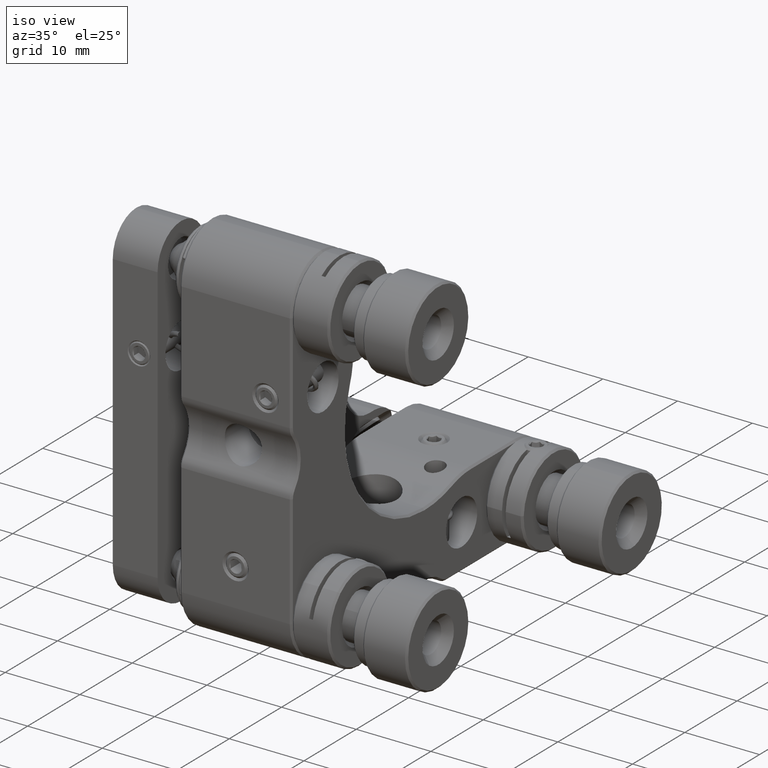
[diagram: clean part render]
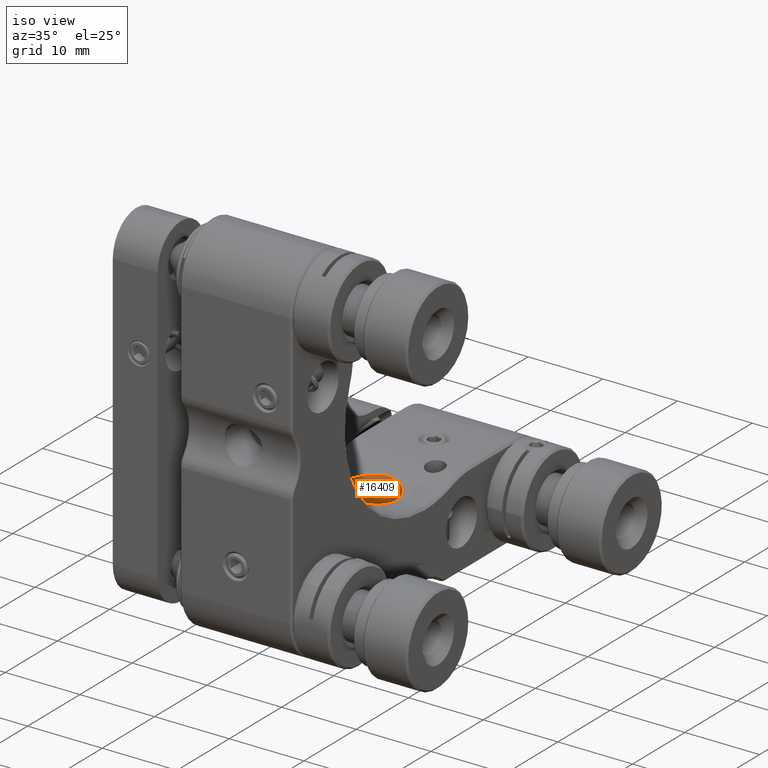
[diagram: same view with one face highlighted and labeled with its STEP entity id]
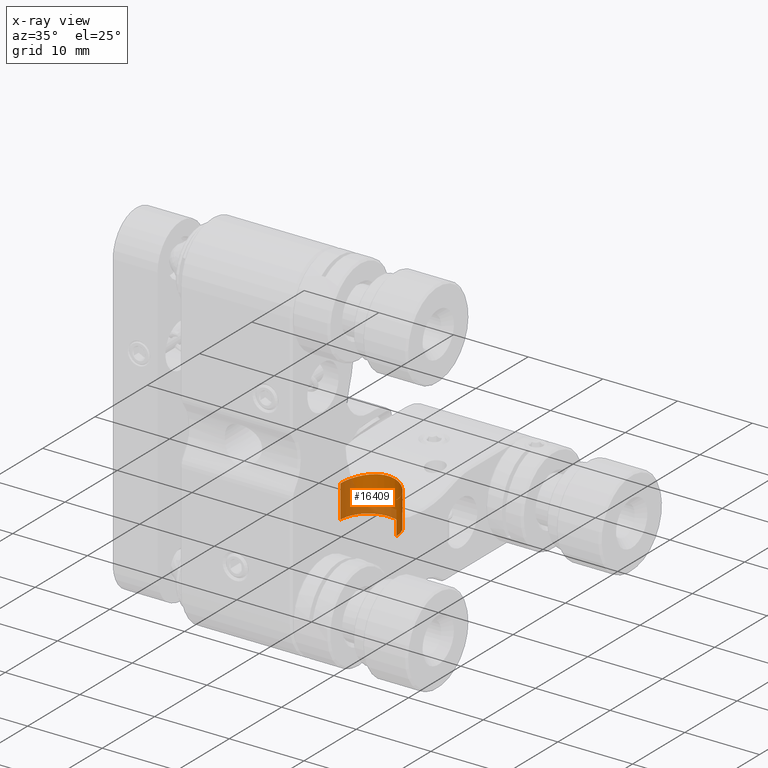
[diagram: x-ray of the same camera — body ghosted, the highlighted face saturated]
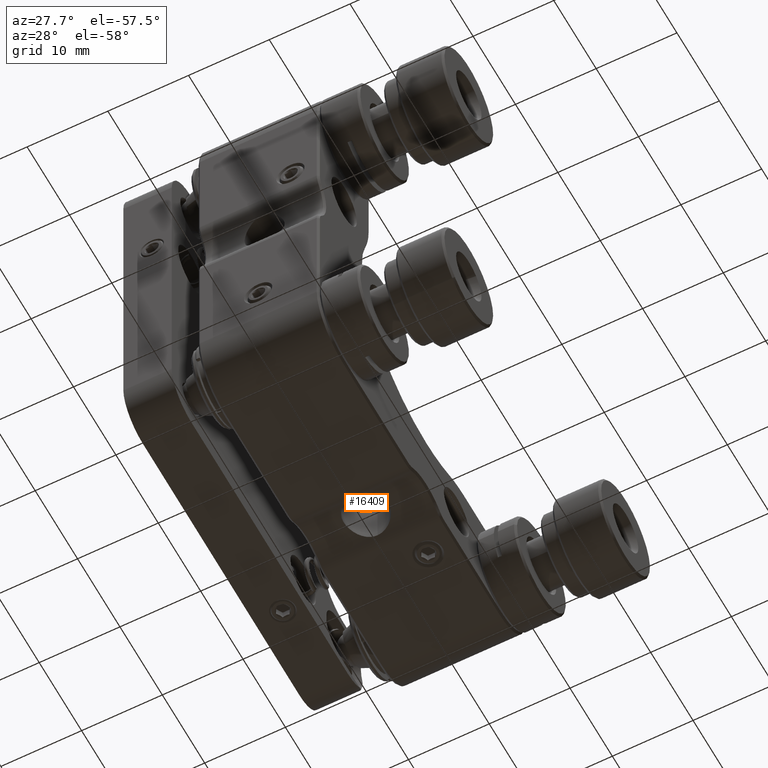
[diagram: same view with one face highlighted and labeled with its STEP entity id]
A machine part, iso view. The second image highlights one B-rep face of the part: STEP entity #16409.
The next image is the same camera in x-ray: the body ghosted, the highlighted face saturated — about 41% of this face is hidden behind the body in this view.
A second angle (auxiliary view) of the same face is appended — the face is thin or edge-on in the first view.
In plain terms, the highlighted cylindrical surface (edge-blend (fillet) strip) has radius 3.75 mm, axis along (-0, -0, 1).
Its self-contained STEP definition (entity closure, byte-faithful):
#1509 = CARTESIAN_POINT ( 'NONE',  ( -3.628982585196955490, 1.877101486472922520, -14.07013009986534691 ) ) ;
#1593 = CARTESIAN_POINT ( 'NONE',  ( 3.749999999999995115, 1.148767454818471201, -14.09999999999998366 ) ) ;
#1792 = CARTESIAN_POINT ( 'NONE',  ( -3.369839987291200600, 2.563268645346034269, -14.00922566902397115 ) ) ;
#2011 = CARTESIAN_POINT ( 'NONE',  ( -3.252426835085697743, 2.782597774432800541, -13.98281034090257791 ) ) ;
#3931 = CYLINDRICAL_SURFACE ( 'NONE', #25961, 3.749999999999996447 ) ;
#4839 = CARTESIAN_POINT ( 'NONE',  ( 3.725485990726403518, 1.393937727568325347, -14.09381707158891928 ) ) ;
#5049 = CARTESIAN_POINT ( 'NONE',  ( -1.212004061719756942, 4.457323809081431776, -13.67240372083526978 ) ) ;
#5255 = CARTESIAN_POINT ( 'NONE',  ( 3.555751771596942223, 2.116094877003511510, -14.05234136798688560 ) ) ;
#5494 = VERTEX_POINT ( 'NONE', #28560 ) ;
#7884 = CARTESIAN_POINT ( 'NONE',  ( 3.628816958998096087, 1.877193851751986164, -14.07009074892617129 ) ) ;
#8092 = CARTESIAN_POINT ( 'NONE',  ( -2.288059913418017732, 3.881048654986233082, -13.80144688185482060 ) ) ;
#8315 = CARTESIAN_POINT ( 'NONE',  ( -0.2485162821763805263, 4.649922596511136597, -13.62370753377165400 ) ) ;
#8342 = ORIENTED_EDGE ( 'NONE', *, *, #19234, .F. ) ;
#8684 = CARTESIAN_POINT ( 'NONE',  ( 0.0000000000000000000, 0.9000000000000050182, -18.50000000000000000 ) ) ;
#8727 = CARTESIAN_POINT ( 'NONE',  ( 2.978904866737028367, 3.191091158230966673, -13.92543328174354400 ) ) ;
#9438 = EDGE_LOOP ( 'NONE', ( #38877, #8342, #21983, #13622 ) ) ;
#10010 = DIRECTION ( 'NONE',  ( -0.0000000000000000000, -0.0000000000000000000, 1.000000000000000000 ) ) ;
#11151 = CARTESIAN_POINT ( 'NONE',  ( 2.822294983198565088, 3.381201113835134553, -13.89439644806895302 ) ) ;
#11354 = CARTESIAN_POINT ( 'NONE',  ( -2.980006518552245076, 3.189544899597088534, -13.92566026105769517 ) ) ;
#11782 = CARTESIAN_POINT ( 'NONE',  ( -2.825522397917700435, 3.377638827170063252, -13.89500521861262072 ) ) ;
#11997 = CARTESIAN_POINT ( 'NONE',  ( 3.749999999999996447, 0.9000000000000051292, -14.09999999999998899 ) ) ;
#12785 = CARTESIAN_POINT ( 'NONE',  ( -3.749999999999996447, 0.9000000000000053513, 0.0000000000000000000 ) ) ;
#13272 = CARTESIAN_POINT ( 'NONE',  ( 0.0000000000000000000, 0.9000000000000050182, 0.0000000000000000000 ) ) ;
#13622 = ORIENTED_EDGE ( 'NONE', *, *, #15613, .F. ) ;
#13748 = DIRECTION ( 'NONE',  ( -0.0000000000000000000, -0.0000000000000000000, 1.000000000000000000 ) ) ;
#15267 = CARTESIAN_POINT ( 'NONE',  ( 0.4902151676635322364, 4.625919225575451321, -13.62996777242478430 ) ) ;
#15539 = B_SPLINE_CURVE_WITH_KNOTS ( 'NONE', 3,
 ( #18004, #21466, #31228, #1509, #34695, #1792, #2011, #11354, #11782, #24588, #8092, #25021, #37809, #5049, #18300, #34985, #8315, #31517, #15267, #35197, #21327, #34559, #28263, #21115, #18506, #11151, #8727, #34336, #41498, #5255, #7884, #4839, #1593, #11997 ),
 .UNSPECIFIED., .F., .F.,
 ( 4, 2, 2, 2, 2, 2, 2, 2, 2, 2, 2, 2, 2, 2, 2, 2, 4 ),
 ( 0.01177105597397364728, 0.01250654871683593884, 0.01324204145969823040, 0.01397753420256052023, 0.01471302694542281179, 0.01544851968828510336, 0.01618401243114739319, 0.01691950517400968995, 0.01765499791687197978, 0.01839049065973427308, 0.01912598340259656637, 0.01986147614545885620, 0.02059696888832114950, 0.02133246163118344280, 0.02206795437404573609, 0.02280344711690802939, 0.02353893985977031922 ),
 .UNSPECIFIED. ) ;
#15613 = EDGE_CURVE ( 'NONE', #30691, #28682, #15539, .T. ) ;
#16409 = ADVANCED_FACE ( 'NONE', ( #33648 ), #3931, .F. ) ;
#18004 = CARTESIAN_POINT ( 'NONE',  ( -3.749999999999996447, 0.9000000000000053513, -14.09999999999998899 ) ) ;
#18300 = CARTESIAN_POINT ( 'NONE',  ( -0.9759831283636494215, 4.529028601580752600, -13.65447031242198150 ) ) ;
#18506 = CARTESIAN_POINT ( 'NONE',  ( 2.477982856263466260, 3.725121042282764527, -13.83259027891507920 ) ) ;
#19234 = EDGE_CURVE ( 'NONE', #5494, #35514, #29824, .T. ) ;
#19862 = CARTESIAN_POINT ( 'NONE',  ( -3.749999999999996447, 0.9000000000000053513, -14.09999999999998899 ) ) ;
#19919 = VECTOR ( 'NONE', #13748, 1000.000000000000000 ) ;
#21115 = CARTESIAN_POINT ( 'NONE',  ( 2.287696626148292278, 3.881511193651350222, -13.80136367775724793 ) ) ;
#21327 = CARTESIAN_POINT ( 'NONE',  ( 1.211182765092004399, 4.457454664246255582, -13.67236491162783807 ) ) ;
#21466 = CARTESIAN_POINT ( 'NONE',  ( -3.749999999999996891, 1.145257347153177063, -14.09999999999999076 ) ) ;
#21983 = ORIENTED_EDGE ( 'NONE', *, *, #37961, .T. ) ;
#22617 = CARTESIAN_POINT ( 'NONE',  ( -3.749999999999995115, 0.9000000000000053513, -18.50000000000000000 ) ) ;
#23238 = DIRECTION ( 'NONE',  ( 1.000000000000000000, 0.0000000000000000000, 0.0000000000000000000 ) ) ;
#24089 = VECTOR ( 'NONE', #36636, 1000.000000000000000 ) ;
#24588 = CARTESIAN_POINT ( 'NONE',  ( -2.479913227073611726, 3.723526405971897546, -13.83290779891921751 ) ) ;
#25021 = CARTESIAN_POINT ( 'NONE',  ( -1.883060070898001426, 4.152069190557806877, -13.74388054728727759 ) ) ;
#25961 = AXIS2_PLACEMENT_3D ( 'NONE', #13272, #10010, #23238 ) ;
#26434 = LINE ( 'NONE', #12785, #24089 ) ;
#27249 = EDGE_CURVE ( 'NONE', #35514, #30691, #26434, .T. ) ;
#27799 = DIRECTION ( 'NONE',  ( 1.000000000000000000, 0.0000000000000000000, 0.0000000000000000000 ) ) ;
#28263 = CARTESIAN_POINT ( 'NONE',  ( 1.878773040644681869, 4.154716072548468198, -13.74330312021994338 ) ) ;
#28560 = CARTESIAN_POINT ( 'NONE',  ( 3.749999999999995115, 0.9000000000000050182, -18.50000000000000000 ) ) ;
#28682 = VERTEX_POINT ( 'NONE', #34482 ) ;
#29824 = CIRCLE ( 'NONE', #33300, 3.749999999999995115 ) ;
#30691 = VERTEX_POINT ( 'NONE', #19862 ) ;
#31228 = CARTESIAN_POINT ( 'NONE',  ( -3.726177172012569816, 1.389740340693703224, -14.09398802588755473 ) ) ;
#31470 = DIRECTION ( 'NONE',  ( -0.0000000000000000000, -0.0000000000000000000, 1.000000000000000000 ) ) ;
#31517 = CARTESIAN_POINT ( 'NONE',  ( 0.2461747986752337858, 4.650077037985858475, -13.62366765715642281 ) ) ;
#32206 = CARTESIAN_POINT ( 'NONE',  ( 3.749999999999996447, 0.9000000000000050182, 0.0000000000000000000 ) ) ;
#33300 = AXIS2_PLACEMENT_3D ( 'NONE', #8684, #31470, #27799 ) ;
#33648 = FACE_OUTER_BOUND ( 'NONE', #9438, .T. ) ;
#34336 = CARTESIAN_POINT ( 'NONE',  ( 3.252591692480445662, 2.782450579006217062, -13.98284080759961512 ) ) ;
#34482 = CARTESIAN_POINT ( 'NONE',  ( 3.749999999999996447, 0.9000000000000051292, -14.09999999999998899 ) ) ;
#34559 = CARTESIAN_POINT ( 'NONE',  ( 1.663468434461048640, 4.269765592170328361, -13.71690742461053425 ) ) ;
#34695 = CARTESIAN_POINT ( 'NONE',  ( -3.557287843751876455, 2.111605267087060867, -14.05270829359154661 ) ) ;
#34985 = CARTESIAN_POINT ( 'NONE',  ( -0.4960477228371549252, 4.625094403449356406, -13.63017984581244413 ) ) ;
#35197 = CARTESIAN_POINT ( 'NONE',  ( 0.9718540356703335714, 4.530190727698950148, -13.65417990900704304 ) ) ;
#35468 = LINE ( 'NONE', #32206, #19919 ) ;
#35514 = VERTEX_POINT ( 'NONE', #22617 ) ;
#36636 = DIRECTION ( 'NONE',  ( -0.0000000000000000000, -0.0000000000000000000, 1.000000000000000000 ) ) ;
#37809 = CARTESIAN_POINT ( 'NONE',  ( -1.668118025312551156, 4.267623610487102148, -13.71740791329847831 ) ) ;
#37961 = EDGE_CURVE ( 'NONE', #5494, #28682, #35468, .T. ) ;
#38877 = ORIENTED_EDGE ( 'NONE', *, *, #27249, .F. ) ;
#41498 = CARTESIAN_POINT ( 'NONE',  ( 3.367782319015856896, 2.567423060537773694, -14.00875915265495841 ) ) ;